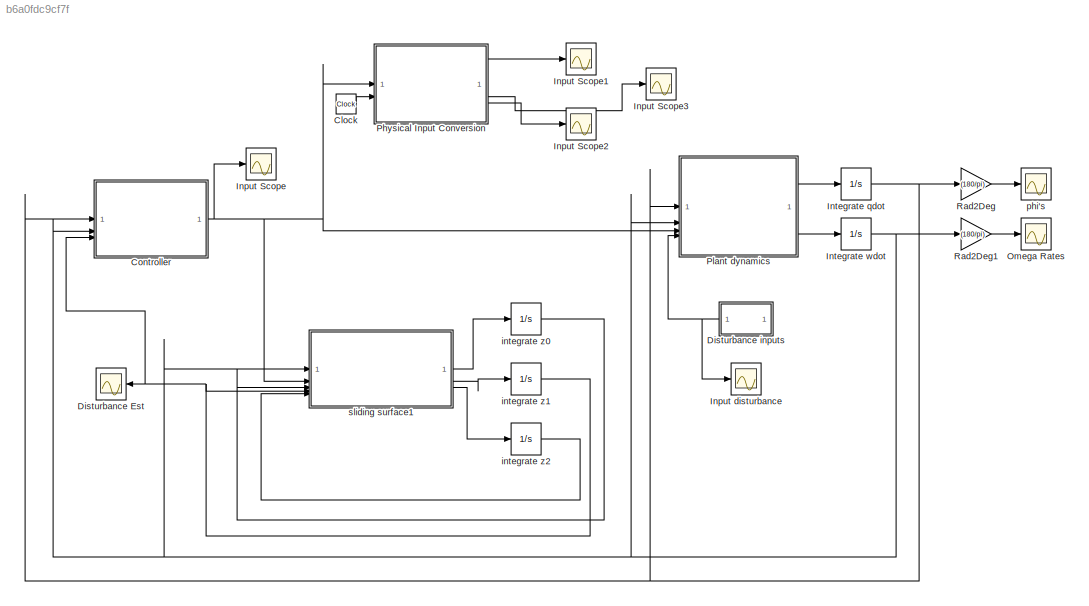
MODEL slx_b6a0fdc9cf7f
KIND model
CONFIG AbsTol = auto
CONFIG EnableMultiTasking = off
CONFIG FixedStep = auto
CONFIG MaxStep = auto
CONFIG MinStep = auto
CONFIG RelTol = 1e-3
CONFIG SampleTimeConstraint = Unconstrained
CONFIG SolverName = VariableStepAuto
CONFIG StartTime = 0.0
CONFIG StopTime = 20
BLOCK [Clock] Clock
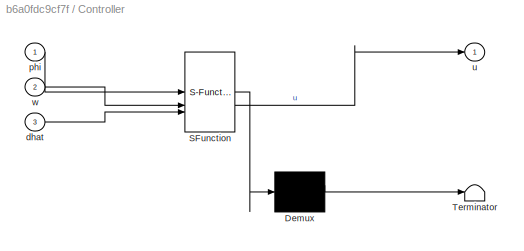
BLOCK [SubSystem] Controller
  ErrorFcn = Stateflow.Translate.translate
  PermitHierarchicalResolution = ExplicitOnly
  SFBlockType = MATLAB Function
  TreatAsAtomicUnit = on
BLOCK [Demux] Controller/ Demux 
  Outputs = 1
BLOCK [S-Function] Controller/ SFunction 
  EnableBusSupport = on
  FunctionName = sf_sfun
  PortCounts = [3 2]
  SFcnIsStateOwnerBlock = off
  SFunctionDeploymentMode = off
  Tag = Stateflow S-Function 1
BLOCK [Terminator] Controller/ Terminator 
BLOCK [Inport] Controller/dhat
  Port = 3
BLOCK [Inport] Controller/phi
BLOCK [Outport] Controller/u
BLOCK [Inport] Controller/w
  Port = 2
BLOCK [Scope] Disturbance Est
  Floating = off
  NumInputPorts = 1
  ScopeSpecificationString = Simulink.scopes.TimeScopeBlockCfg('CurrentConfiguration', extmgr.ConfigurationSet(extmgr.Configuration('Core','General UI',true),extmgr.Configuration('Core','Source UI',true),extmgr.Configuration('Sources','WiredSimulink',true,'DataLoggingVariableName','ScopeData4'),extmgr.Configuration('Visuals','Time Domain',true,'SerializedDisplays',{struct('MinYLimReal','-1052.00291','MaxYLimReal','1052.00291'...<+1624ch>
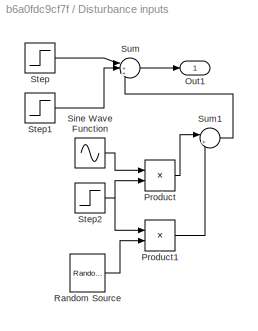
BLOCK [SubSystem] Disturbance inputs
BLOCK [Outport] Disturbance inputs/Out1
BLOCK [Product] Disturbance inputs/Product
BLOCK [Product] Disturbance inputs/Product1
BLOCK [Reference] Disturbance inputs/Random Source  REF=dspsrcs4/Random
Source
  SourceBlock = dspsrcs4/Random\nSource
  SourceType = Random Source
  UserDataPersistent = on
BLOCK [Sin] Disturbance inputs/Sine Wave Function
  Amplitude = [3, 0.2, 0.5]'
  Bias = [2, -1, 1]';
  Frequency = [3*pi, 2*pi, 1]';
  SampleTime = 0
BLOCK [Step] Disturbance inputs/Step
  After = 3.*[200, -200, 100]'
  Before = [0, 0, 0]'
  SampleTime = 0
  Time = 5
BLOCK [Step] Disturbance inputs/Step1
  After = -3.*[200, -200, 100]'
  Before = [0, 0, 0]'
  SampleTime = 0
  Time = 10
BLOCK [Step] Disturbance inputs/Step2
  After = [10, 10, 10]';
  Before = [0, 0, 0]'
  SampleTime = 0
  Time = 10
BLOCK [Sum] Disturbance inputs/Sum
  Inputs = |+++
BLOCK [Sum] Disturbance inputs/Sum1
  Inputs = |++
BLOCK [Scope] Input Scope
  Floating = off
  NumInputPorts = 1
  ScopeSpecificationString = Simulink.scopes.TimeScopeBlockCfg('CurrentConfiguration', extmgr.ConfigurationSet(extmgr.Configuration('Core','General UI',true),extmgr.Configuration('Core','Source UI',true),extmgr.Configuration('Sources','WiredSimulink',true,'DataLoggingVariableName','ScopeData2'),extmgr.Configuration('Visuals','Time Domain',true,'SerializedDisplays',{struct('MinYLimReal','-0.16683','MaxYLimReal','0.17852','YLab...<+1502ch>
BLOCK [Scope] Input Scope1
  Floating = off
  NumInputPorts = 1
  ScopeSpecificationString = Simulink.scopes.TimeScopeBlockCfg('CurrentConfiguration', extmgr.ConfigurationSet(extmgr.Configuration('Core','General UI',true),extmgr.Configuration('Core','Source UI',true),extmgr.Configuration('Sources','WiredSimulink',true,'DataLoggingVariableName','ScopeData1'),extmgr.Configuration('Visuals','Time Domain',true,'SerializedDisplays',{struct('MinYLimReal','-80.48241','MaxYLimReal','80.47237','YL...<+1538ch>
BLOCK [Scope] Input Scope2
  Floating = off
  NumInputPorts = 1
  ScopeSpecificationString = Simulink.scopes.TimeScopeBlockCfg('CurrentConfiguration', extmgr.ConfigurationSet(extmgr.Configuration('Core','General UI',true),extmgr.Configuration('Core','Source UI',true),extmgr.Configuration('Sources','WiredSimulink',true,'DataLoggingVariableName','ScopeData2'),extmgr.Configuration('Visuals','Time Domain',true,'SerializedDisplays',{struct('MinYLimReal','-12.50408','MaxYLimReal','12.50408','YL...<+1546ch>
BLOCK [Scope] Input Scope3
  Floating = off
  NumInputPorts = 1
  ScopeSpecificationString = Simulink.scopes.TimeScopeBlockCfg('CurrentConfiguration', extmgr.ConfigurationSet(extmgr.Configuration('Core','General UI',true),extmgr.Configuration('Core','Source UI',true),extmgr.Configuration('Sources','WiredSimulink',true,'DataLoggingVariableName','ScopeData3'),extmgr.Configuration('Visuals','Time Domain',true,'SerializedDisplays',{struct('MinYLimReal','-75.3868','MaxYLimReal','77.02802','YLa...<+1538ch>
BLOCK [Scope] Input disturbance
  Floating = off
  NumInputPorts = 1
  ScopeSpecificationString = Simulink.scopes.TimeScopeBlockCfg('CurrentConfiguration', extmgr.ConfigurationSet(extmgr.Configuration('Core','General UI',true),extmgr.Configuration('Core','Source UI',true),extmgr.Configuration('Sources','WiredSimulink',true,'DataLoggingVariableName','ScopeData4'),extmgr.Configuration('Visuals','Time Domain',true,'SerializedDisplays',{struct('MinYLimReal','-750.00000','MaxYLimReal','750.00000','...<+1929ch>
BLOCK [Integrator] Integrate qdot
  InitialCondition = [10*(pi/180), 5*(pi/180), 15*(pi/180),]'
BLOCK [Integrator] Integrate wdot
BLOCK [Scope] Omega Rates
  Floating = off
  NumInputPorts = 1
  ScopeSpecificationString = Simulink.scopes.TimeScopeBlockCfg('CurrentConfiguration', extmgr.ConfigurationSet(extmgr.Configuration('Core','General UI',true),extmgr.Configuration('Core','Source UI',true),extmgr.Configuration('Sources','WiredSimulink',true),extmgr.Configuration('Visuals','Time Domain',true,'SerializedDisplays',{struct('MinYLimReal','-1.17352','MaxYLimReal','1.55348','YLabelReal','','MinYLimMag','0.00000','MaxY...<+1459ch>
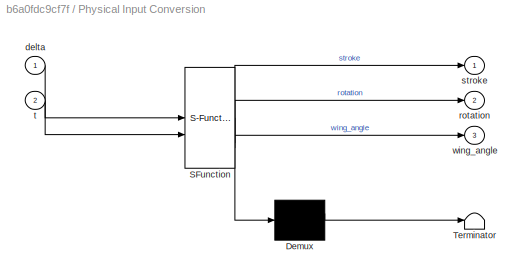
BLOCK [SubSystem] Physical Input Conversion
  ErrorFcn = Stateflow.Translate.translate
  PermitHierarchicalResolution = ExplicitOnly
  SFBlockType = MATLAB Function
  TreatAsAtomicUnit = on
BLOCK [Demux] Physical Input Conversion/ Demux 
  Outputs = 1
BLOCK [S-Function] Physical Input Conversion/ SFunction 
  EnableBusSupport = on
  FunctionName = sf_sfun
  PortCounts = [2 4]
  SFcnIsStateOwnerBlock = off
  SFunctionDeploymentMode = off
  Tag = Stateflow S-Function 3
BLOCK [Terminator] Physical Input Conversion/ Terminator 
BLOCK [Inport] Physical Input Conversion/delta
BLOCK [Outport] Physical Input Conversion/rotation
  Port = 2
BLOCK [Outport] Physical Input Conversion/stroke
BLOCK [Inport] Physical Input Conversion/t
  Port = 2
BLOCK [Outport] Physical Input Conversion/wing_angle
  Port = 3
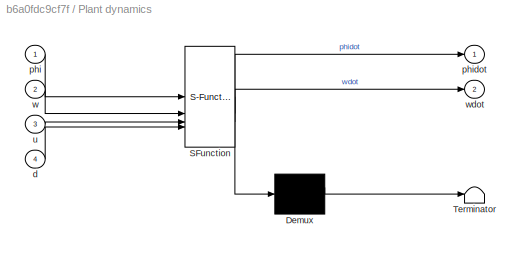
BLOCK [SubSystem] Plant dynamics
  ErrorFcn = Stateflow.Translate.translate
  PermitHierarchicalResolution = ExplicitOnly
  SFBlockType = MATLAB Function
  TreatAsAtomicUnit = on
BLOCK [Demux] Plant dynamics/ Demux 
  Outputs = 1
BLOCK [S-Function] Plant dynamics/ SFunction 
  EnableBusSupport = on
  FunctionName = sf_sfun
  PortCounts = [4 3]
  SFcnIsStateOwnerBlock = off
  SFunctionDeploymentMode = off
  Tag = Stateflow S-Function 2
BLOCK [Terminator] Plant dynamics/ Terminator 
BLOCK [Inport] Plant dynamics/d
  Port = 4
BLOCK [Inport] Plant dynamics/phi
BLOCK [Outport] Plant dynamics/phidot
BLOCK [Inport] Plant dynamics/u
  Port = 3
BLOCK [Inport] Plant dynamics/w
  Port = 2
BLOCK [Outport] Plant dynamics/wdot
  Port = 2
BLOCK [Gain] Rad2Deg
  Gain = (180/pi)
BLOCK [Gain] Rad2Deg1
  Gain = (180/pi)
BLOCK [Integrator] integrate z0
BLOCK [Integrator] integrate z1
BLOCK [Integrator] integrate z2
BLOCK [Scope] phi's
  Floating = off
  NumInputPorts = 1
  ScopeSpecificationString = Simulink.scopes.TimeScopeBlockCfg('CurrentConfiguration', extmgr.ConfigurationSet(extmgr.Configuration('Core','General UI',true),extmgr.Configuration('Core','Source UI',true),extmgr.Configuration('Sources','WiredSimulink',true,'DataLoggingVariableName','ScopeData1'),extmgr.Configuration('Visuals','Time Domain',true,'SerializedDisplays',{struct('MinYLimReal','-3.05341','MaxYLimReal','17.00593','YLa...<+1495ch>
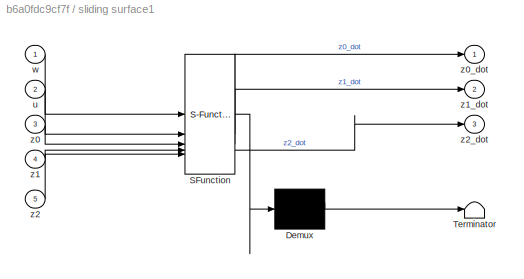
BLOCK [SubSystem] sliding surface1
  ErrorFcn = Stateflow.Translate.translate
  PermitHierarchicalResolution = ExplicitOnly
  SFBlockType = MATLAB Function
  TreatAsAtomicUnit = on
BLOCK [Demux] sliding surface1/ Demux 
  Outputs = 1
BLOCK [S-Function] sliding surface1/ SFunction 
  EnableBusSupport = on
  FunctionName = sf_sfun
  PortCounts = [5 4]
  SFcnIsStateOwnerBlock = off
  SFunctionDeploymentMode = off
  Tag = Stateflow S-Function 4
BLOCK [Terminator] sliding surface1/ Terminator 
BLOCK [Inport] sliding surface1/u
  Port = 2
BLOCK [Inport] sliding surface1/w
BLOCK [Inport] sliding surface1/z0
  Port = 3
BLOCK [Outport] sliding surface1/z0_dot
BLOCK [Inport] sliding surface1/z1
  Port = 4
BLOCK [Outport] sliding surface1/z1_dot
  Port = 2
BLOCK [Inport] sliding surface1/z2
  Port = 5
BLOCK [Outport] sliding surface1/z2_dot
  Port = 3
LINE Clock:1 -> Physical Input Conversion:2
NET Controller:1 -> Input Scope:1, Physical Input Conversion:1, Plant dynamics:3, sliding surface1:2
LINE Disturbance inputs/Product1:1 -> Disturbance inputs/Sum1:2
LINE Disturbance inputs/Product:1 -> Disturbance inputs/Sum1:1
LINE Disturbance inputs/Random Source:1 -> Disturbance inputs/Product1:2
LINE Disturbance inputs/Sine Wave Function:1 -> Disturbance inputs/Product:1
LINE Disturbance inputs/Step1:1 -> Disturbance inputs/Sum:2
NET Disturbance inputs/Step2:1 -> Disturbance inputs/Product1:1, Disturbance inputs/Product:2
LINE Disturbance inputs/Step:1 -> Disturbance inputs/Sum:1
LINE Disturbance inputs/Sum1:1 -> Disturbance inputs/Sum:3
LINE Disturbance inputs/Sum:1 -> Disturbance inputs/Out1:1
NET Disturbance inputs:1 -> Input disturbance:1, Plant dynamics:4
NET Integrate qdot:1 -> Controller:1, Plant dynamics:1, Rad2Deg:1
NET Integrate wdot:1 -> Controller:2, Plant dynamics:2, Rad2Deg1:1, sliding surface1:1
LINE Physical Input Conversion:1 -> Input Scope1:1
LINE Physical Input Conversion:2 -> Input Scope3:1
LINE Physical Input Conversion:3 -> Input Scope2:1
LINE Plant dynamics:1 -> Integrate qdot:1
LINE Plant dynamics:2 -> Integrate wdot:1
LINE Rad2Deg1:1 -> Omega Rates:1
LINE Rad2Deg:1 -> phi's:1
LINE integrate z0:1 -> sliding surface1:3
NET integrate z1:1 -> Controller:3, Disturbance Est:1, sliding surface1:4
LINE integrate z2:1 -> sliding surface1:5
LINE sliding surface1:1 -> integrate z0:1
LINE sliding surface1:2 -> integrate z1:1
LINE sliding surface1:3 -> integrate z2:1
note: NET lines group one-source signal fan-out (src -> all destinations, sorted); 1:1 wires keep LINE
CHART Controller states=1 transitions=1
  STATE_LABEL 'eML_blk_kernel()'
  STATE_LABEL 'SCRIPT:\nfunction u = CONTROLLER(phi, w, dhat)\n\nu = [0;0;0];\n\n%C1 = (Ixz)/(Ixx*Izz-Ixz^2);\n%C2 = (Ixx)/(Ixx*Izz-Ixz^2);\n%C3 = 1/Iyy;\n%C4 = (Izz)/(Ixx*Izz-Ixz^2);\n\n\n%A = [C4*Lp, 0, C1*Nr;\n%    0, C3*Mq, 0;\n%    Cq*Lp, 0, C2*Nr];\n%B = [C4*Ldp, C1*Ndb, 0;\n%    0, 0, C3*Mp;\n%    C1*Ldp, C2*Ndb, 0];\n\nA = [-15.20, 0, -19.31;\n    0, -2.61, 0;\n    -8.13, 0, -43.18];\n\nB = [4275.35, 2860.64, 0;\n    0, 0, 359...<+586ch>'
CHART Plant dynamics states=1 transitions=1
  STATE_LABEL 'eML_blk_kernel()'
  STATE_LABEL 'SCRIPT:\nfunction [phidot, wdot] = PLANT(phi, w, u, d)\n\nphidot = [0;0;0];\nwdot = [0;0;0];\n\nphiR = phi(1);\nphiP = phi(2);\nphiY = phi(3);\n\n%C1 = (Ixz)/(Ixx*Izz-Ixz^2);\n%C2 = (Ixx)/(Ixx*Izz-Ixz^2);\n%C3 = 1/Iyy;\n%C4 = (Izz)/(Ixx*Izz-Ixz^2);\n\n\n%A = [C4*Lp, 0, C1*Nr;\n%    0, C3*Mq, 0;\n%    Cq*Lp, 0, C2*Nr];\n%B = [C4*Ldp, C1*Ndb, 0;\n%    0, 0, C3*Mp;\n%    C1*Ldp, C2*Ndb, 0];\n\nA = [-15.20, 0, -19.31;\n    0...<+275ch>'
CHART Physical Input Conversion states=1 transitions=1
  STATE_LABEL 'eML_blk_kernel()'
  STATE_LABEL "SCRIPT:\nfunction [stroke, rotation, wing_angle] = FLAPPING(delta, t)\n\nf = 60; %Hz\n\ncap_phi_L = 120-delta(1)*(180/pi);\ncap_phi_R = 120+delta(1)*(180/pi);\n\ncap_psi_L = 120-delta(2)*(180/pi);\ncap_psi_R = 120+delta(2)*(180/pi);\n\n% Vectors are left, right\n\n% Stroke plane\nphi_L = (cap_phi_L/2)*sin(2*pi*f*t);\nphi_R = (cap_phi_R/2)*sin(2*pi*f*t);\nstroke = [phi_L, phi_R]';\n\n% Rotation\npsi_L = (cap_psi_L/2)...<+156ch>"
CHART sliding surface1 states=1 transitions=1
  STATE_LABEL 'eML_blk_kernel()'
  STATE_LABEL 'SCRIPT:\nfunction [z0_dot, z1_dot, z2_dot] = OBSERVER(w, u, z0, z1, z2)\n\nz0_dot = [0;0;0];\nz1_dot = [0;0;0];\nz2_dot = [0;0;0];\n\nA = [-15.20, 0, -19.31;\n    0, -2.61, 0;\n    -8.13, 0, -43.18];\n\nB = [4275.35, 2860.64, 0;\n    0, 0, 3590.66;\n    2288.51, 6397.42, 0];\n\nL = 1000;\nL0 = L^(1/3)*eye(3);\nL1 = L^(2/3)*eye(3);\nL2 = L^(0)*eye(3);\n\nlambda0 = 3;\nlambda1 = 1.5*sqrt(3);\nlambda2 = 1.1;\nn = 2;\n\nerror...<+524ch>'
CHART  states=0 transitions=0
CHART  states=0 transitions=0
CHART  states=0 transitions=0
CHART  states=0 transitions=0
